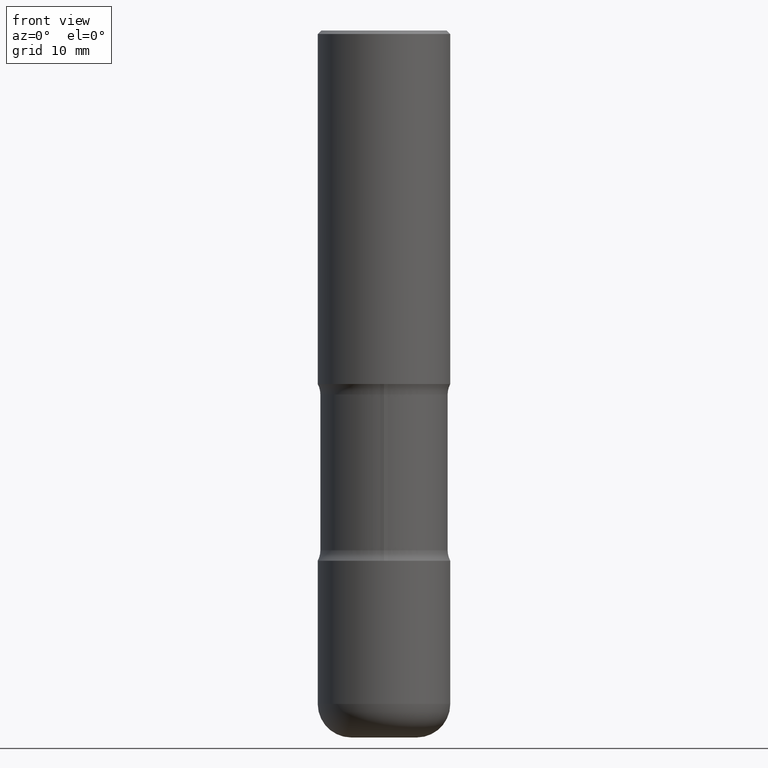
[diagram: clean part render]
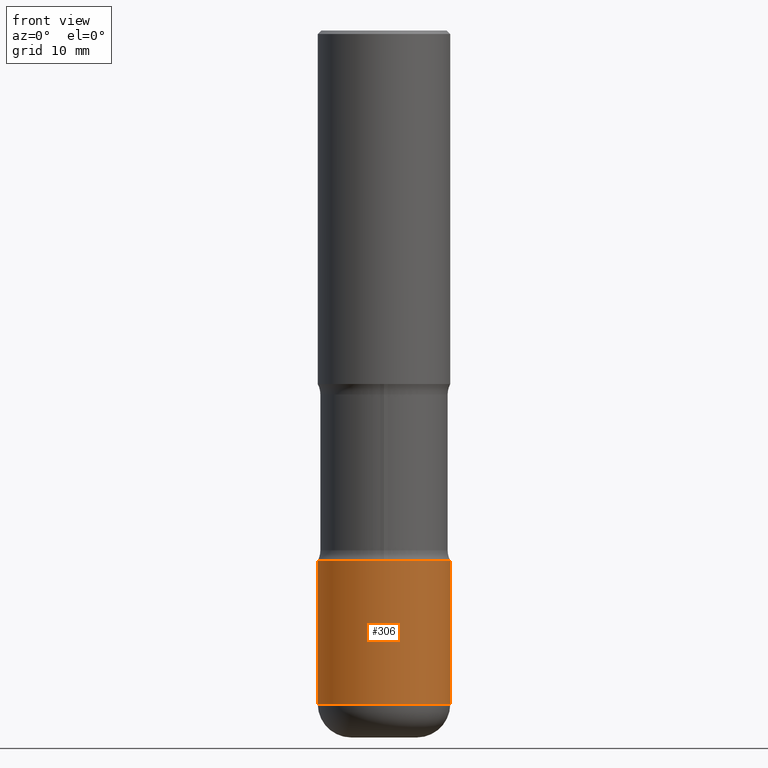
[diagram: same view with one face highlighted and labeled with its STEP entity id]
A machine part, front view. The second image highlights one B-rep face of the part: STEP entity #306.
In plain terms, the highlighted cylindrical surface (partial cylindrical patch) has radius 9.525 mm, axis along (-0, 0, 1).
Its self-contained STEP definition (entity closure, byte-faithful):
#11 = ORIENTED_EDGE ( 'NONE', *, *, #389, .T. ) ;
#34 = AXIS2_PLACEMENT_3D ( 'NONE', #741, #183, #770 ) ;
#36 = DIRECTION ( 'NONE',  ( 1.000000000000000000, -6.982962677686266711E-15, 0.000000000000000000 ) ) ;
#53 = EDGE_CURVE ( 'NONE', #282, #623, #751, .T. ) ;
#73 = ORIENTED_EDGE ( 'NONE', *, *, #349, .F. ) ;
#122 = CARTESIAN_POINT ( 'NONE',  ( 0.000000000000000000, 0.000000000000000000, 0.000000000000000000 ) ) ;
#134 = ORIENTED_EDGE ( 'NONE', *, *, #381, .F. ) ;
#159 = DIRECTION ( 'NONE',  ( -2.445468806185136597E-29, 3.491481338843145583E-15, 1.000000000000000000 ) ) ;
#174 = DIRECTION ( 'NONE',  ( -2.445468806185136597E-29, 3.491481338843145583E-15, 1.000000000000000000 ) ) ;
#183 = DIRECTION ( 'NONE',  ( -2.445468806185136597E-29, 3.491481338843145583E-15, 1.000000000000000000 ) ) ;
#249 = CARTESIAN_POINT ( 'NONE',  ( -0.3750000000000000555, -9.223958699660533767E-15, -2.999999999999999556 ) ) ;
#251 = LINE ( 'NONE', #505, #439 ) ;
#265 = DIRECTION ( 'NONE',  ( -2.445468806185136877E-29, 3.491481338843145188E-15, 1.000000000000000000 ) ) ;
#282 = VERTEX_POINT ( 'NONE', #307 ) ;
#297 = AXIS2_PLACEMENT_3D ( 'NONE', #724, #159, #36 ) ;
#302 = LINE ( 'NONE', #542, #739 ) ;
#306 = ADVANCED_FACE ( 'NONE', ( #679 ), #491, .T. ) ;
#307 = CARTESIAN_POINT ( 'NONE',  ( -0.3750000000000001110, -1.063800864189200846E-14, -3.810000000000000053 ) ) ;
#349 = EDGE_CURVE ( 'NONE', #282, #765, #302, .T. ) ;
#381 = EDGE_CURVE ( 'NONE', #765, #580, #777, .T. ) ;
#389 = EDGE_CURVE ( 'NONE', #623, #580, #251, .T. ) ;
#439 = VECTOR ( 'NONE', #265, 39.37007874015748143 ) ;
#474 = CARTESIAN_POINT ( 'NONE',  ( 0.3750000000000000555, -1.309305502066178637E-14, -2.999999999999999556 ) ) ;
#491 = CYLINDRICAL_SURFACE ( 'NONE', #624, 0.3750000000000000555 ) ;
#505 = CARTESIAN_POINT ( 'NONE',  ( 0.3750000000000000555, -2.618611004132350016E-15, 1.828566290923476203E-29 ) ) ;
#542 = CARTESIAN_POINT ( 'NONE',  ( -0.3750000000000000555, 2.664535259100376091E-15, -1.844600658845589598E-29 ) ) ;
#545 = DIRECTION ( 'NONE',  ( -2.445468806185136877E-29, 3.491481338843145188E-15, 1.000000000000000000 ) ) ;
#580 = VERTEX_POINT ( 'NONE', #474 ) ;
#598 = DIRECTION ( 'NONE',  ( 1.000000000000000000, -6.982962677686265922E-15, 4.876176775795935793E-29 ) ) ;
#623 = VERTEX_POINT ( 'NONE', #790 ) ;
#624 = AXIS2_PLACEMENT_3D ( 'NONE', #122, #174, #598 ) ;
#646 = EDGE_LOOP ( 'NONE', ( #73, #775, #11, #134 ) ) ;
#679 = FACE_OUTER_BOUND ( 'NONE', #646, .T. ) ;
#724 = CARTESIAN_POINT ( 'NONE',  ( 9.317236151565370389E-29, -1.330254390099238573E-14, -3.810000000000000053 ) ) ;
#739 = VECTOR ( 'NONE', #545, 39.37007874015748143 ) ;
#741 = CARTESIAN_POINT ( 'NONE',  ( 7.336406418555408669E-29, -1.047444401652943478E-14, -2.999999999999999556 ) ) ;
#751 = CIRCLE ( 'NONE', #297, 0.3750000000000000555 ) ;
#765 = VERTEX_POINT ( 'NONE', #249 ) ;
#770 = DIRECTION ( 'NONE',  ( 1.000000000000000000, -6.982962677686266711E-15, 0.000000000000000000 ) ) ;
#775 = ORIENTED_EDGE ( 'NONE', *, *, #53, .T. ) ;
#777 = CIRCLE ( 'NONE', #34, 0.3750000000000000555 ) ;
#790 = CARTESIAN_POINT ( 'NONE',  ( 0.3750000000000001110, -1.592115490512473732E-14, -3.810000000000000053 ) ) ;